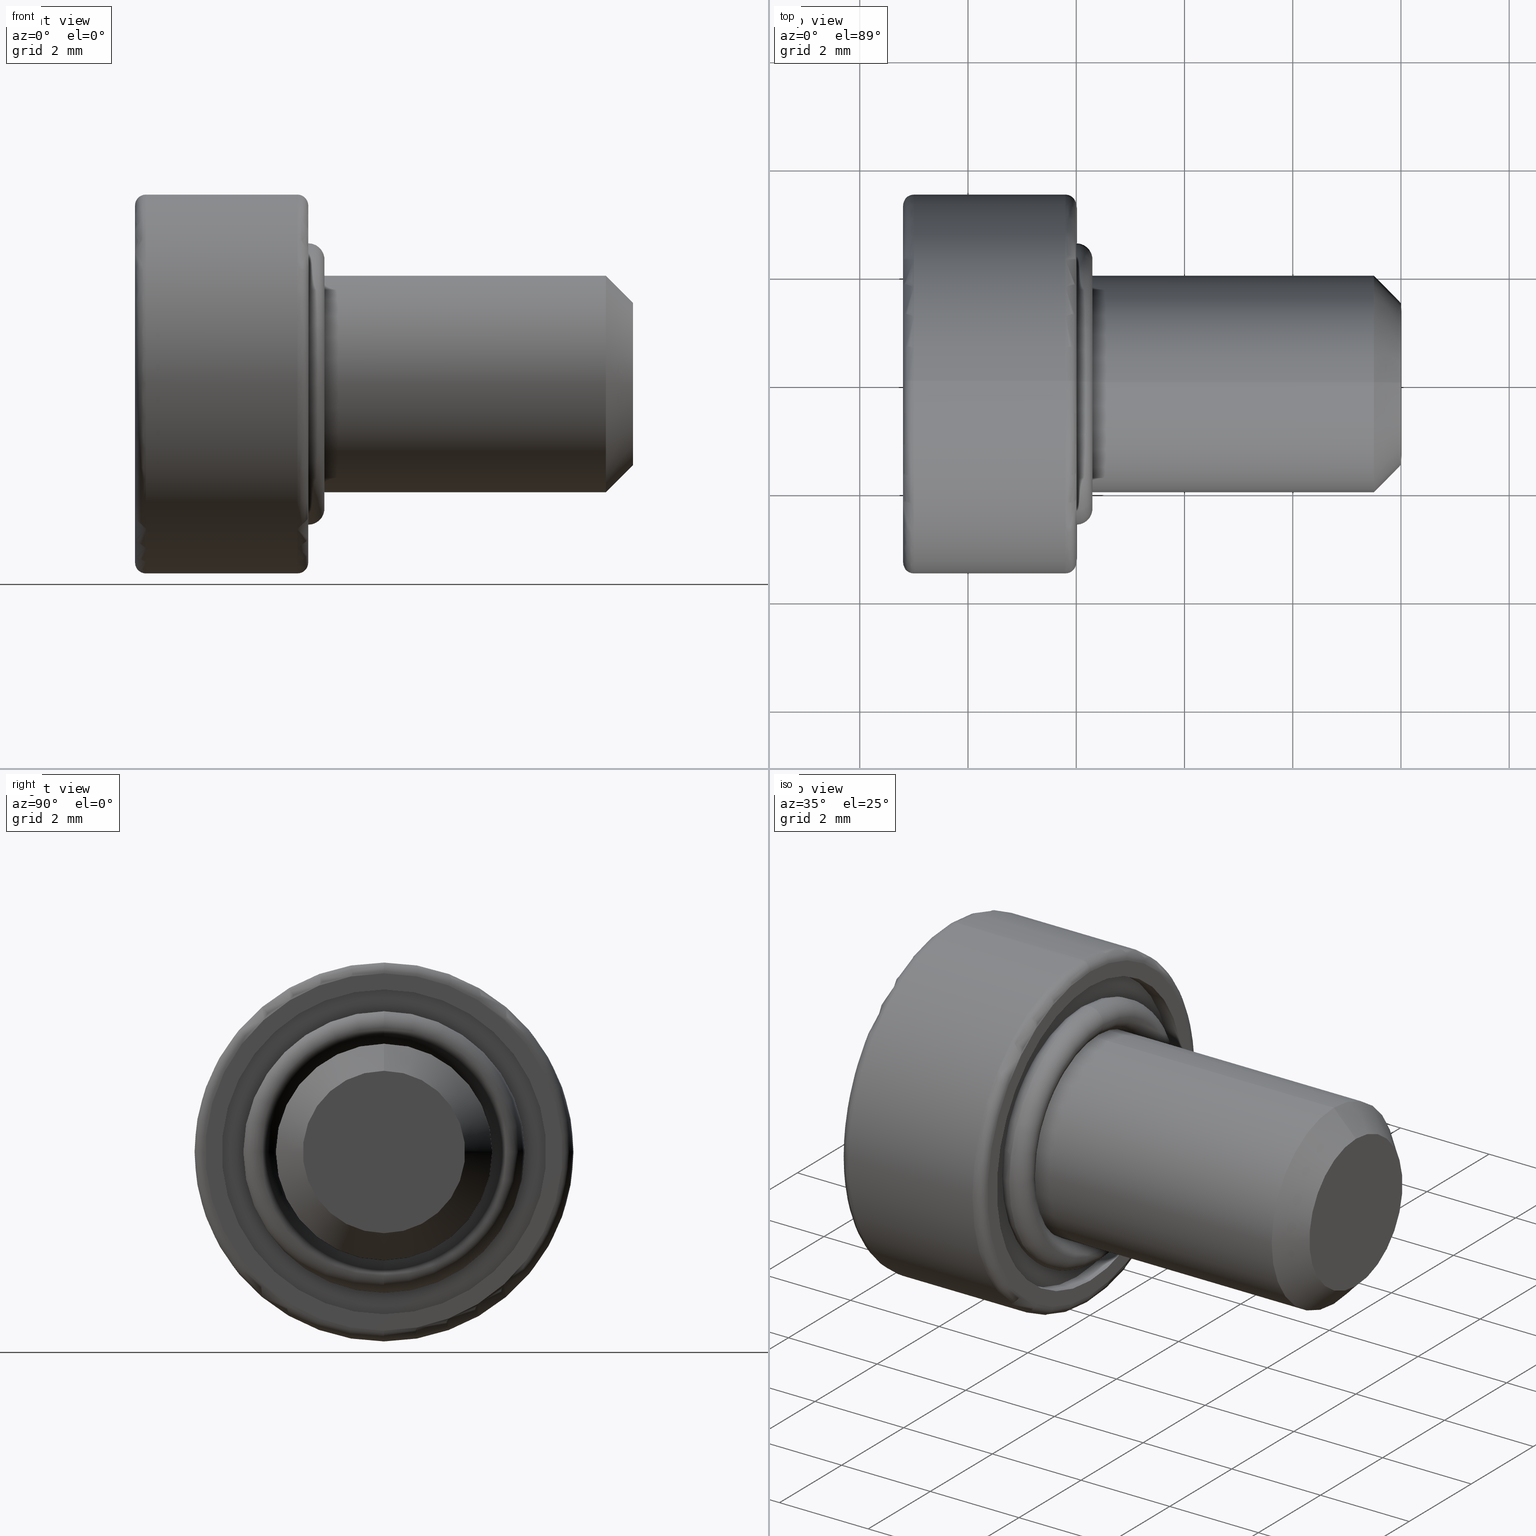
[diagram: canonical four-view strip — front | top / right | iso, engineering-drawing reading convention]
A machine part, canonical four-view strip (front | top / right | iso — engineering-drawing reading convention). The complete STEP part file that produces these views, byte-faithful:
ISO-10303-21;
HEADER;
FILE_DESCRIPTION (( 'STEP AP214' ),
    '1' );
FILE_NAME ('TL_418_M4_6.STEP',
    '2016-01-25T00:03:54',
    ( '' ),
    ( '' ),
    'SwSTEP 2.0',
    'SolidWorks 2015',
    '' );
FILE_SCHEMA (( 'AUTOMOTIVE_DESIGN' ));
ENDSEC;

DATA;
#1 = ADVANCED_FACE ( 'NONE', ( #25 ), #760, .F. ) ;
#2 = CARTESIAN_POINT ( 'NONE',  ( -1.900000000000000100, 1.443375672974112700, -2.388904732184694800E-014 ) ) ;
#3 = CARTESIAN_POINT ( 'NONE',  ( -1.900000000000000100, -0.7216878364870084100, 1.250000000000021800 ) ) ;
#4 = CARTESIAN_POINT ( 'NONE',  ( -3.673940397442057600E-017, 2.449293598294706900E-016, 2.000000000000000400 ) ) ;
#5 = DIRECTION ( 'NONE',  ( -0.0000000000000000000, 0.4999999999999809600, -0.8660254037844495900 ) ) ;
#6 = LINE ( 'NONE', #696, #192 ) ;
#7 = CIRCLE ( 'NONE', #379, 3.000000000000000400 ) ;
#8 = CIRCLE ( 'NONE', #275, 2.000000000000000000 ) ;
#9 = DIRECTION ( 'NONE',  ( 1.000000000000000000, 0.0000000000000000000, 0.0000000000000000000 ) ) ;
#10 = PRESENTATION_LAYER_ASSIGNMENT (  '', '', ( #788 ) ) ;
#11 = DIRECTION ( 'NONE',  ( -1.000000000000000000, -0.0000000000000000000, -0.0000000000000000000 ) ) ;
#12 = ORIENTED_EDGE ( 'NONE', *, *, #368, .T. ) ;
#13 = EDGE_LOOP ( 'NONE', ( #148, #648, #601, #81 ) ) ;
#14 = PRODUCT_DEFINITION_SHAPE ( 'NONE', 'NONE',  #805 ) ;
#15 = DIRECTION ( 'NONE',  ( 0.0000000000000000000, 0.0000000000000000000, -1.000000000000000000 ) ) ;
#16 = VECTOR ( 'NONE', #797, 1000.000000000000200 ) ;
#17 = DIRECTION ( 'NONE',  ( 1.000000000000000000, 0.0000000000000000000, 0.0000000000000000000 ) ) ;
#18 = SHAPE_REPRESENTATION_RELATIONSHIP ( 'NONE' , 'NONE' ,  #322, #187 ) ;
#19 = CARTESIAN_POINT ( 'NONE',  ( 6.000000000000000000, 0.0000000000000000000, 0.0000000000000000000 ) ) ;
#20 = CARTESIAN_POINT ( 'NONE',  ( -3.000000000000000000, 0.0000000000000000000, 0.0000000000000000000 ) ) ;
#21 = STYLED_ITEM ( 'NONE', ( #253 ), #103 ) ;
#22 = ORIENTED_EDGE ( 'NONE', *, *, #39, .F. ) ;
#23 = CARTESIAN_POINT ( 'NONE',  ( -3.200000000000000200, 0.7216878364870906700, 1.250000000000021800 ) ) ;
#24 = CARTESIAN_POINT ( 'NONE',  ( -1.900000000000000100, 0.7216878364870906700, 1.250000000000021800 ) ) ;
#25 = FACE_OUTER_BOUND ( 'NONE', #510, .T. ) ;
#26 = DIRECTION ( 'NONE',  ( 0.0000000000000000000, 0.0000000000000000000, 1.000000000000000000 ) ) ;
#27 = PLANE ( 'NONE',  #680 ) ;
#28 = VECTOR ( 'NONE', #260, 1000.000000000000000 ) ;
#29 = DIRECTION ( 'NONE',  ( 0.0000000000000000000, 0.0000000000000000000, 1.000000000000000000 ) ) ;
#30 = APPLICATION_CONTEXT ( 'automotive_design' ) ;
#31 = AXIS2_PLACEMENT_3D ( 'NONE', #650, #205, #576 ) ;
#32 = ORIENTED_EDGE ( 'NONE', *, *, #612, .F. ) ;
#33 = VERTEX_POINT ( 'NONE', #428 ) ;
#34 = CARTESIAN_POINT ( 'NONE',  ( -3.200000000000000200, -0.7216878364870908900, -1.250000000000022200 ) ) ;
#35 = ORIENTED_EDGE ( 'NONE', *, *, #641, .T. ) ;
#36 = ORIENTED_EDGE ( 'NONE', *, *, #544, .F. ) ;
#37 = EDGE_CURVE ( 'NONE', #389, #63, #459, .T. ) ;
#38 = CARTESIAN_POINT ( 'NONE',  ( 6.000000000000000000, 0.0000000000000000000, 1.499999999999999600 ) ) ;
#39 = EDGE_CURVE ( 'NONE', #476, #406, #628, .T. ) ;
#40 = AXIS2_PLACEMENT_3D ( 'NONE', #560, #753, #59 ) ;
#41 = FACE_OUTER_BOUND ( 'NONE', #427, .T. ) ;
#42 = VECTOR ( 'NONE', #542, 1000.000000000000000 ) ;
#43 = DIRECTION ( 'NONE',  ( 0.0000000000000000000, 0.0000000000000000000, -1.000000000000000000 ) ) ;
#44 = VERTEX_POINT ( 'NONE', #613 ) ;
#45 = ORIENTED_EDGE ( 'NONE', *, *, #634, .F. ) ;
#46 = UNCERTAINTY_MEASURE_WITH_UNIT (LENGTH_MEASURE( 1.000000000000000100E-005 ), #652, 'distance_accuracy_value', 'NONE');
#47 = CARTESIAN_POINT ( 'NONE',  ( -3.200000000000000200, -0.7216878364870911200, -1.250000000000022200 ) ) ;
#48 = CARTESIAN_POINT ( 'NONE',  ( -1.900000000000000100, 0.7216878364870081800, -1.250000000000022200 ) ) ;
#49 = CARTESIAN_POINT ( 'NONE',  ( -1.900000000000000100, 0.7216878364870081800, -1.250000000000022200 ) ) ;
#50 = MECHANICAL_DESIGN_GEOMETRIC_PRESENTATION_REPRESENTATION (  '', ( #788 ), #87 ) ;
#51 = ORIENTED_EDGE ( 'NONE', *, *, #37, .F. ) ;
#52 = DIRECTION ( 'NONE',  ( 0.0000000000000000000, 1.224646799147353200E-016, 1.000000000000000000 ) ) ;
#53 = CARTESIAN_POINT ( 'NONE',  ( 0.0000000000000000000, 2.816687638038912500E-016, 2.300000000000000300 ) ) ;
#54 = CIRCLE ( 'NONE', #405, 3.000000000000000400 ) ;
#55 =( NAMED_UNIT ( * ) PLANE_ANGLE_UNIT ( ) SI_UNIT ( $, .RADIAN. ) );
#56 = ADVANCED_FACE ( 'NONE', ( #606 ), #673, .T. ) ;
#57 = VERTEX_POINT ( 'NONE', #112 ) ;
#58 = AXIS2_PLACEMENT_3D ( 'NONE', #49, #674, #233 ) ;
#59 = DIRECTION ( 'NONE',  ( 0.0000000000000000000, 0.0000000000000000000, -1.000000000000000000 ) ) ;
#60 = ADVANCED_FACE ( 'NONE', ( #751 ), #804, .F. ) ;
#61 = FACE_OUTER_BOUND ( 'NONE', #740, .T. ) ;
#62 = ADVANCED_FACE ( 'NONE', ( #271 ), #418, .T. ) ;
#63 = VERTEX_POINT ( 'NONE', #47 ) ;
#64 = PRODUCT_DEFINITION ( 'UNKNOWN', '', #113, #119 ) ;
#65 = CARTESIAN_POINT ( 'NONE',  ( -1.900000000000000100, -0.7216878364870084100, 1.250000000000021800 ) ) ;
#66 = CARTESIAN_POINT ( 'NONE',  ( 6.000000000000000000, 0.0000000000000000000, 0.0000000000000000000 ) ) ;
#67 =( LENGTH_UNIT ( ) NAMED_UNIT ( * ) SI_UNIT ( .MILLI., .METRE. ) );
#68 = AXIS2_PLACEMENT_3D ( 'NONE', #646, #201, #573 ) ;
#69 = DIRECTION ( 'NONE',  ( 0.0000000000000000000, 0.0000000000000000000, -1.000000000000000000 ) ) ;
#70 = VECTOR ( 'NONE', #516, 1000.000000000000100 ) ;
#71 = DIRECTION ( 'NONE',  ( -0.0000000000000000000, -0.5000000000000380800, -0.8660254037844166100 ) ) ;
#72 = EDGE_CURVE ( 'NONE', #284, #498, #434, .T. ) ;
#73 = MECHANICAL_DESIGN_GEOMETRIC_PRESENTATION_REPRESENTATION (  '', ( #815 ), #137 ) ;
#74 = CARTESIAN_POINT ( 'NONE',  ( 0.0000000000000000000, 0.0000000000000000000, 0.0000000000000000000 ) ) ;
#75 = ORIENTED_EDGE ( 'NONE', *, *, #169, .F. ) ;
#76 = CARTESIAN_POINT ( 'NONE',  ( 0.0000000000000000000, 0.0000000000000000000, -2.300000000000000300 ) ) ;
#77 = ORIENTED_EDGE ( 'NONE', *, *, #286, .F. ) ;
#78 = DIRECTION ( 'NONE',  ( 1.000000000000000000, -0.0000000000000000000, -0.0000000000000000000 ) ) ;
#79 = ORIENTED_EDGE ( 'NONE', *, *, #657, .T. ) ;
#80 = CARTESIAN_POINT ( 'NONE',  ( -0.2000000000000000900, 0.0000000000000000000, -3.500000000000000400 ) ) ;
#81 = ORIENTED_EDGE ( 'NONE', *, *, #367, .F. ) ;
#82 = LINE ( 'NONE', #565, #232 ) ;
#83 = DIRECTION ( 'NONE',  ( 0.0000000000000000000, 0.0000000000000000000, -1.000000000000000000 ) ) ;
#84 = DIRECTION ( 'NONE',  ( 1.000000000000000000, 0.0000000000000000000, 0.0000000000000000000 ) ) ;
#85 = DIRECTION ( 'NONE',  ( 1.000000000000000000, 0.0000000000000000000, 0.0000000000000000000 ) ) ;
#86 = CARTESIAN_POINT ( 'NONE',  ( -1.900000000000000100, -1.443375672974113400, 2.362564658902374300E-014 ) ) ;
#87 =( GEOMETRIC_REPRESENTATION_CONTEXT ( 3 ) GLOBAL_UNCERTAINTY_ASSIGNED_CONTEXT ( ( #46 ) ) GLOBAL_UNIT_ASSIGNED_CONTEXT ( ( #652, #338, #785 ) ) REPRESENTATION_CONTEXT ( 'NONE', 'WORKASPACE' ) );
#88 = DIRECTION ( 'NONE',  ( 1.000000000000000000, 0.0000000000000000000, 0.0000000000000000000 ) ) ;
#89 = DIRECTION ( 'NONE',  ( 0.0000000000000000000, 0.0000000000000000000, -1.000000000000000000 ) ) ;
#90 = TOROIDAL_SURFACE ( 'NONE', #166, 2.300000000000000300, 0.2999999999999998800 ) ;
#91 = CLOSED_SHELL ( 'NONE', ( #56, #436, #504, #185 ) ) ;
#92 = VERTEX_POINT ( 'NONE', #3 ) ;
#93 = VERTEX_POINT ( 'NONE', #632 ) ;
#94 = DIRECTION ( 'NONE',  ( 1.000000000000000000, 0.0000000000000000000, 0.0000000000000000000 ) ) ;
#95 = ORIENTED_EDGE ( 'NONE', *, *, #410, .F. ) ;
#96 = ORIENTED_EDGE ( 'NONE', *, *, #811, .T. ) ;
#97 = ORIENTED_EDGE ( 'NONE', *, *, #255, .F. ) ;
#98 = DIRECTION ( 'NONE',  ( 1.000000000000000000, 0.0000000000000000000, 0.0000000000000000000 ) ) ;
#99 = VERTEX_POINT ( 'NONE', #812 ) ;
#100 = ORIENTED_EDGE ( 'NONE', *, *, #657, .F. ) ;
#101 = CARTESIAN_POINT ( 'NONE',  ( -0.2999999999999999900, 0.0000000000000000000, 0.0000000000000000000 ) ) ;
#102 = EDGE_LOOP ( 'NONE', ( #75, #283, #813, #689 ) ) ;
#103 = MANIFOLD_SOLID_BREP ( '��]1', #91 ) ;
#104 = VECTOR ( 'NONE', #396, 1000.000000000000000 ) ;
#105 = FACE_OUTER_BOUND ( 'NONE', #727, .T. ) ;
#106 = AXIS2_PLACEMENT_3D ( 'NONE', #639, #801, #355 ) ;
#107 = DIRECTION ( 'NONE',  ( 0.0000000000000000000, 0.0000000000000000000, -1.000000000000000000 ) ) ;
#108 = ORIENTED_EDGE ( 'NONE', *, *, #719, .T. ) ;
#109 = ORIENTED_EDGE ( 'NONE', *, *, #410, .T. ) ;
#110 = DIRECTION ( 'NONE',  ( 1.000000000000000000, 0.0000000000000000000, 0.0000000000000000000 ) ) ;
#111 = AXIS2_PLACEMENT_3D ( 'NONE', #256, #323, #512 ) ;
#112 = CARTESIAN_POINT ( 'NONE',  ( -0.2999999999999999900, 3.673940397442060400E-016, 3.000000000000000400 ) ) ;
#113 = PRODUCT_DEFINITION_FORMATION_WITH_SPECIFIED_SOURCE ( 'ANY', '', #735, .NOT_KNOWN. ) ;
#114 = DIRECTION ( 'NONE',  ( 0.0000000000000000000, -0.4999999999999809600, 0.8660254037844495900 ) ) ;
#115 = VECTOR ( 'NONE', #333, 1000.000000000000200 ) ;
#116 = AXIS2_PLACEMENT_3D ( 'NONE', #20, #653, #149 ) ;
#117 = DIRECTION ( 'NONE',  ( -1.000000000000000000, -0.0000000000000000000, -0.0000000000000000000 ) ) ;
#118 = COLOUR_RGB ( '',0.7921568627450980000, 0.8196078431372548800, 0.9333333333333333500 ) ;
#119 = PRODUCT_DEFINITION_CONTEXT ( 'detailed design', #30, 'design' ) ;
#120 = ORIENTED_EDGE ( 'NONE', *, *, #368, .F. ) ;
#121 = DIRECTION ( 'NONE',  ( -1.000000000000000000, -0.0000000000000000000, -0.0000000000000000000 ) ) ;
#122 = EDGE_CURVE ( 'NONE', #92, #476, #527, .T. ) ;
#123 = ORIENTED_EDGE ( 'NONE', *, *, #471, .F. ) ;
#124 = ORIENTED_EDGE ( 'NONE', *, *, #581, .F. ) ;
#125 = VERTEX_POINT ( 'NONE', #412 ) ;
#126 = ORIENTED_EDGE ( 'NONE', *, *, #242, .T. ) ;
#127 = DIRECTION ( 'NONE',  ( 0.0000000000000000000, 0.0000000000000000000, -1.000000000000000000 ) ) ;
#128 = ORIENTED_EDGE ( 'NONE', *, *, #122, .F. ) ;
#129 = ORIENTED_EDGE ( 'NONE', *, *, #173, .T. ) ;
#130 = ADVANCED_FACE ( 'NONE', ( #693 ), #507, .T. ) ;
#131 = VECTOR ( 'NONE', #277, 1000.000000000000000 ) ;
#132 = COLOUR_RGB ( '',0.7921568627450980000, 0.8196078431372548800, 0.9333333333333333500 ) ;
#133 = CARTESIAN_POINT ( 'NONE',  ( -3.200000000000000200, 4.163799117101001500E-016, 3.300000000000000300 ) ) ;
#134 = DIRECTION ( 'NONE',  ( 0.0000000000000000000, 1.000000000000000000, -1.224646799147353200E-016 ) ) ;
#135 = ADVANCED_FACE ( 'NONE', ( #105 ), #658, .T. ) ;
#136 = CARTESIAN_POINT ( 'NONE',  ( -3.200000000000000200, -0.7216878364870084100, 1.250000000000021800 ) ) ;
#137 =( GEOMETRIC_REPRESENTATION_CONTEXT ( 3 ) GLOBAL_UNCERTAINTY_ASSIGNED_CONTEXT ( ( #484 ) ) GLOBAL_UNIT_ASSIGNED_CONTEXT ( ( #555, #511, #567 ) ) REPRESENTATION_CONTEXT ( 'NONE', 'WORKASPACE' ) );
#138 = DIRECTION ( 'NONE',  ( 0.0000000000000000000, 1.000000000000000000, -1.224646799147353200E-016 ) ) ;
#139 = DIRECTION ( 'NONE',  ( 0.0000000000000000000, 0.0000000000000000000, -1.000000000000000000 ) ) ;
#140 = COLOUR_RGB ( '',0.7921568627450980000, 0.8196078431372548800, 0.9333333333333333500 ) ;
#141 = LINE ( 'NONE', #207, #468 ) ;
#142 = CARTESIAN_POINT ( 'NONE',  ( -1.900000000000000100, -1.443375672974113400, 2.362564658902374300E-014 ) ) ;
#143 = FILL_AREA_STYLE_COLOUR ( '', #118 ) ;
#144 = SHAPE_DEFINITION_REPRESENTATION ( #473, #295 ) ;
#145 = DIRECTION ( 'NONE',  ( 0.0000000000000000000, 0.0000000000000000000, -1.000000000000000000 ) ) ;
#146 = CARTESIAN_POINT ( 'NONE',  ( -1.900000000000000100, 0.7216878364870081800, -1.250000000000022200 ) ) ;
#147 = ORIENTED_EDGE ( 'NONE', *, *, #456, .T. ) ;
#148 = ORIENTED_EDGE ( 'NONE', *, *, #528, .F. ) ;
#149 = DIRECTION ( 'NONE',  ( 0.0000000000000000000, 0.0000000000000000000, -1.000000000000000000 ) ) ;
#150 = ORIENTED_EDGE ( 'NONE', *, *, #759, .F. ) ;
#151 = DIRECTION ( 'NONE',  ( 0.0000000000000000000, 0.0000000000000000000, -1.000000000000000000 ) ) ;
#152 = VECTOR ( 'NONE', #110, 1000.000000000000000 ) ;
#153 = DIRECTION ( 'NONE',  ( 0.0000000000000000000, 1.000000000000000000, -1.224646799147353200E-016 ) ) ;
#154 = CARTESIAN_POINT ( 'NONE',  ( -1.900000000000000100, -0.7216878364870908900, -1.250000000000022200 ) ) ;
#155 = AXIS2_PLACEMENT_3D ( 'NONE', #610, #297, #357 ) ;
#156 = DIRECTION ( 'NONE',  ( 0.0000000000000000000, 0.0000000000000000000, -1.000000000000000000 ) ) ;
#157 = AXIS2_PLACEMENT_3D ( 'NONE', #401, #17, #463 ) ;
#158 = CARTESIAN_POINT ( 'NONE',  ( -3.200000000000000200, 0.0000000000000000000, 0.0000000000000000000 ) ) ;
#159 = CARTESIAN_POINT ( 'NONE',  ( -0.2999999999999999900, 0.0000000000000000000, -3.000000000000000400 ) ) ;
#160 = PRODUCT_RELATED_PRODUCT_CATEGORY ( 'part', '', ( #735 ) ) ;
#161 = TOROIDAL_SURFACE ( 'NONE', #644, 2.300000000000000300, 0.2999999999999998800 ) ;
#162 = VECTOR ( 'NONE', #399, 1000.000000000000000 ) ;
#163 = CIRCLE ( 'NONE', #439, 3.500000000000000400 ) ;
#164 = DIRECTION ( 'NONE',  ( 0.0000000000000000000, 0.0000000000000000000, -1.000000000000000000 ) ) ;
#165 = APPLICATION_PROTOCOL_DEFINITION ( 'draft international standard', 'automotive_design', 1998, #214 ) ;
#166 = AXIS2_PLACEMENT_3D ( 'NONE', #74, #78, #15 ) ;
#167 = VERTEX_POINT ( 'NONE', #48 ) ;
#168 = DIRECTION ( 'NONE',  ( 0.0000000000000000000, 0.0000000000000000000, -1.000000000000000000 ) ) ;
#169 = EDGE_CURVE ( 'NONE', #33, #478, #342, .T. ) ;
#170 = CIRCLE ( 'NONE', #446, 0.2000000000000000900 ) ;
#171 = CARTESIAN_POINT ( 'NONE',  ( -3.200000000000000200, -0.7216878364870084100, 1.250000000000021800 ) ) ;
#172 = DIRECTION ( 'NONE',  ( 1.000000000000000000, 0.0000000000000000000, 0.0000000000000000000 ) ) ;
#173 = EDGE_CURVE ( 'NONE', #556, #362, #6, .T. ) ;
#174 = DIRECTION ( 'NONE',  ( -0.0000000000000000000, -1.000000000000000000, -0.0000000000000000000 ) ) ;
#175 = FACE_OUTER_BOUND ( 'NONE', #13, .T. ) ;
#176 = FACE_OUTER_BOUND ( 'NONE', #575, .T. ) ;
#177 = DIRECTION ( 'NONE',  ( 0.0000000000000000000, -0.8660254037844165000, 0.5000000000000385200 ) ) ;
#178 = ORIENTED_EDGE ( 'NONE', *, *, #595, .T. ) ;
#179 = ORIENTED_EDGE ( 'NONE', *, *, #413, .T. ) ;
#180 = CYLINDRICAL_SURFACE ( 'NONE', #509, 3.000000000000000400 ) ;
#181 = LINE ( 'NONE', #289, #499 ) ;
#182 = CARTESIAN_POINT ( 'NONE',  ( 6.000000000000000000, 0.0000000000000000000, 0.0000000000000000000 ) ) ;
#183 = ADVANCED_FACE ( 'NONE', ( #489 ), #817, .F. ) ;
#184 = DIRECTION ( 'NONE',  ( -1.000000000000000000, -0.0000000000000000000, -0.0000000000000000000 ) ) ;
#185 = ADVANCED_FACE ( 'NONE', ( #676 ), #161, .T. ) ;
#186 = DIRECTION ( 'NONE',  ( 1.000000000000000000, 0.0000000000000000000, 0.0000000000000000000 ) ) ;
#187 = ADVANCED_BREP_SHAPE_REPRESENTATION ( '', ( #103, #249, #695 ), #660 ) ;
#188 = CARTESIAN_POINT ( 'NONE',  ( 0.0000000000000000000, 2.816687638038912500E-016, 2.300000000000000300 ) ) ;
#189 = ORIENTED_EDGE ( 'NONE', *, *, #173, .F. ) ;
#190 = SURFACE_SIDE_STYLE ('',( #442 ) ) ;
#191 = AXIS2_PLACEMENT_3D ( 'NONE', #643, #633, #692 ) ;
#192 = VECTOR ( 'NONE', #117, 1000.000000000000000 ) ;
#193 = PRODUCT_DEFINITION_FORMATION_WITH_SPECIFIED_SOURCE ( 'ANY', '', #679, .NOT_KNOWN. ) ;
#194 = ORIENTED_EDGE ( 'NONE', *, *, #367, .T. ) ;
#195 = CARTESIAN_POINT ( 'NONE',  ( 5.499999999999998200, 0.0000000000000000000, 2.000000000000000000 ) ) ;
#196 = DIRECTION ( 'NONE',  ( -0.0000000000000000000, -0.4999999999999812400, 0.8660254037844493700 ) ) ;
#197 = EDGE_LOOP ( 'NONE', ( #411, #120, #774, #307 ) ) ;
#198 = AXIS2_PLACEMENT_3D ( 'NONE', #768, #325, #698 ) ;
#199 = CARTESIAN_POINT ( 'NONE',  ( 5.499999999999998200, 2.449293598294706900E-016, -2.000000000000000000 ) ) ;
#200 = CARTESIAN_POINT ( 'NONE',  ( -0.2999999999999999900, 0.0000000000000000000, 0.0000000000000000000 ) ) ;
#201 = DIRECTION ( 'NONE',  ( 0.0000000000000000000, -1.000000000000000000, 0.0000000000000000000 ) ) ;
#202 = VECTOR ( 'NONE', #258, 1000.000000000000000 ) ;
#203 = FACE_OUTER_BOUND ( 'NONE', #754, .T. ) ;
#204 = EDGE_CURVE ( 'NONE', #519, #44, #318, .T. ) ;
#205 = DIRECTION ( 'NONE',  ( -1.000000000000000000, -0.0000000000000000000, -0.0000000000000000000 ) ) ;
#206 = DIRECTION ( 'NONE',  ( -0.0000000000000000000, -0.5000000000000380800, -0.8660254037844166100 ) ) ;
#207 = CARTESIAN_POINT ( 'NONE',  ( -3.200000000000000200, 1.443375672974112700, -2.388904732184694800E-014 ) ) ;
#208 = VERTEX_POINT ( 'NONE', #136 ) ;
#209 = DIRECTION ( 'NONE',  ( 0.0000000000000000000, 0.0000000000000000000, -1.000000000000000000 ) ) ;
#210 = EDGE_CURVE ( 'NONE', #316, #99, #806, .T. ) ;
#211 = CARTESIAN_POINT ( 'NONE',  ( -0.2000000000000000900, 0.0000000000000000000, 0.0000000000000000000 ) ) ;
#212 =( NAMED_UNIT ( * ) SI_UNIT ( $, .STERADIAN. ) SOLID_ANGLE_UNIT ( ) );
#213 = AXIS2_PLACEMENT_3D ( 'NONE', #53, #138, #52 ) ;
#214 = APPLICATION_CONTEXT ( 'automotive_design' ) ;
#215 = ORIENTED_EDGE ( 'NONE', *, *, #682, .F. ) ;
#216 = ORIENTED_EDGE ( 'NONE', *, *, #634, .T. ) ;
#217 = AXIS2_PLACEMENT_3D ( 'NONE', #687, #26, #84 ) ;
#218 = ORIENTED_EDGE ( 'NONE', *, *, #716, .T. ) ;
#219 = APPLICATION_CONTEXT ( 'automotive_design' ) ;
#220 = DIRECTION ( 'NONE',  ( -0.0000000000000000000, -1.000000000000000000, -0.0000000000000000000 ) ) ;
#221 = PRODUCT_DEFINITION_CONTEXT ( 'detailed design', #219, 'design' ) ;
#222 = CIRCLE ( 'NONE', #299, 2.000000000000000000 ) ;
#223 = TOROIDAL_SURFACE ( 'NONE', #281, 3.300000000000000300, 0.2000000000000000100 ) ;
#224 = DIRECTION ( 'NONE',  ( 0.0000000000000000000, 0.0000000000000000000, -1.000000000000000000 ) ) ;
#225 = EDGE_LOOP ( 'NONE', ( #35, #22, #128, #416 ) ) ;
#226 = VERTEX_POINT ( 'NONE', #2 ) ;
#227 = ORIENTED_EDGE ( 'NONE', *, *, #581, .T. ) ;
#228 = DIRECTION ( 'NONE',  ( 1.000000000000000000, 0.0000000000000000000, 0.0000000000000000000 ) ) ;
#229 = ORIENTED_EDGE ( 'NONE', *, *, #612, .T. ) ;
#230 = SURFACE_SIDE_STYLE ('',( #584 ) ) ;
#231 = DIRECTION ( 'NONE',  ( 1.000000000000000000, -0.0000000000000000000, -0.0000000000000000000 ) ) ;
#232 = VECTOR ( 'NONE', #5, 1000.000000000000000 ) ;
#233 = DIRECTION ( 'NONE',  ( 0.0000000000000000000, 0.5000000000000380800, 0.8660254037844167300 ) ) ;
#234 = AXIS2_PLACEMENT_3D ( 'NONE', #458, #267, #370 ) ;
#235 = PRODUCT_RELATED_PRODUCT_CATEGORY ( 'part', '', ( #679 ) ) ;
#236 = EDGE_LOOP ( 'NONE', ( #372, #621, #553, #280 ) ) ;
#237 = AXIS2_PLACEMENT_3D ( 'NONE', #672, #172, #609 ) ;
#238 = CARTESIAN_POINT ( 'NONE',  ( -0.2999999999999999900, 0.0000000000000000000, 0.0000000000000000000 ) ) ;
#239 = LINE ( 'NONE', #703, #70 ) ;
#240 = CLOSED_SHELL ( 'NONE', ( #500, #431, #62, #135, #315, #627, #244, #750, #371, #818, #251, #688, #631, #130, #554, #559, #183, #60, #1, #375, #310, #741, #690 ) ) ;
#241 = ORIENTED_EDGE ( 'NONE', *, *, #506, .F. ) ;
#242 = EDGE_CURVE ( 'NONE', #455, #125, #636, .T. ) ;
#243 = VERTEX_POINT ( 'NONE', #133 ) ;
#244 = ADVANCED_FACE ( 'NONE', ( #467 ), #615, .T. ) ;
#245 = CARTESIAN_POINT ( 'NONE',  ( 0.0000000000000000000, 0.0000000000000000000, 0.0000000000000000000 ) ) ;
#246 = VERTEX_POINT ( 'NONE', #557 ) ;
#247 = CARTESIAN_POINT ( 'NONE',  ( -0.2000000000000000900, 0.0000000000000000000, 0.0000000000000000000 ) ) ;
#248 = ORIENTED_EDGE ( 'NONE', *, *, #72, .T. ) ;
#249 = MANIFOLD_SOLID_BREP ( '��� - �����o��2', #240 ) ;
#250 = PLANE ( 'NONE',  #488 ) ;
#251 = ADVANCED_FACE ( 'NONE', ( #301, #790 ), #437, .T. ) ;
#252 = VECTOR ( 'NONE', #700, 1000.000000000000000 ) ;
#253 = PRESENTATION_STYLE_ASSIGNMENT (( #608 ) ) ;
#254 = CARTESIAN_POINT ( 'NONE',  ( 0.0000000000000000000, 0.0000000000000000000, 0.0000000000000000000 ) ) ;
#255 = EDGE_CURVE ( 'NONE', #389, #556, #385, .T. ) ;
#256 = CARTESIAN_POINT ( 'NONE',  ( 6.000000000000000000, 0.0000000000000000000, 0.0000000000000000000 ) ) ;
#257 = AXIS2_PLACEMENT_3D ( 'NONE', #308, #9, #127 ) ;
#258 = DIRECTION ( 'NONE',  ( -1.000000000000000000, -0.0000000000000000000, -0.0000000000000000000 ) ) ;
#259 = EDGE_CURVE ( 'NONE', #284, #44, #550, .T. ) ;
#260 = DIRECTION ( 'NONE',  ( -0.7071067811865487900, 8.659560562354918100E-017, -0.7071067811865463500 ) ) ;
#261 = CARTESIAN_POINT ( 'NONE',  ( 5.499999999999998200, 0.0000000000000000000, 0.0000000000000000000 ) ) ;
#262 = CIRCLE ( 'NONE', #68, 0.2000000000000000900 ) ;
#263 = CARTESIAN_POINT ( 'NONE',  ( -1.900000000000000100, 0.7216878364870906700, 1.250000000000021800 ) ) ;
#264 = ORIENTED_EDGE ( 'NONE', *, *, #210, .F. ) ;
#265 = DIRECTION ( 'NONE',  ( 0.0000000000000000000, 0.0000000000000000000, -1.000000000000000000 ) ) ;
#266 = EDGE_LOOP ( 'NONE', ( #309, #426 ) ) ;
#267 = DIRECTION ( 'NONE',  ( 1.000000000000000000, 0.0000000000000000000, 0.0000000000000000000 ) ) ;
#268 = VERTEX_POINT ( 'NONE', #438 ) ;
#269 = ORIENTED_EDGE ( 'NONE', *, *, #376, .F. ) ;
#270 = LINE ( 'NONE', #574, #252 ) ;
#271 = FACE_OUTER_BOUND ( 'NONE', #483, .T. ) ;
#272 = CARTESIAN_POINT ( 'NONE',  ( -1.900000000000000100, -0.7216878364870084100, 1.250000000000021800 ) ) ;
#273 = APPLICATION_PROTOCOL_DEFINITION ( 'draft international standard', 'automotive_design', 1998, #219 ) ;
#274 = DIRECTION ( 'NONE',  ( -0.0000000000000000000, 0.0000000000000000000, 1.000000000000000000 ) ) ;
#275 = AXIS2_PLACEMENT_3D ( 'NONE', #261, #570, #265 ) ;
#276 = APPLICATION_CONTEXT ( 'automotive_design' ) ;
#277 = DIRECTION ( 'NONE',  ( -0.0000000000000000000, -1.000000000000000000, -0.0000000000000000000 ) ) ;
#278 = PRESENTATION_STYLE_ASSIGNMENT (( #757 ) ) ;
#279 = LINE ( 'NONE', #272, #115 ) ;
#280 = ORIENTED_EDGE ( 'NONE', *, *, #259, .T. ) ;
#281 = AXIS2_PLACEMENT_3D ( 'NONE', #475, #642, #344 ) ;
#282 = EDGE_LOOP ( 'NONE', ( #326, #45, #194, #415 ) ) ;
#283 = ORIENTED_EDGE ( 'NONE', *, *, #678, .F. ) ;
#284 = VERTEX_POINT ( 'NONE', #4 ) ;
#285 = DIRECTION ( 'NONE',  ( -1.000000000000000000, -0.0000000000000000000, -0.0000000000000000000 ) ) ;
#286 = EDGE_CURVE ( 'NONE', #92, #208, #701, .T. ) ;
#287 = ORIENTED_EDGE ( 'NONE', *, *, #814, .F. ) ;
#288 = ORIENTED_EDGE ( 'NONE', *, *, #712, .F. ) ;
#289 = CARTESIAN_POINT ( 'NONE',  ( 6.000000000000000000, 2.449293598294706400E-016, -2.000000000000000000 ) ) ;
#290 = ORIENTED_EDGE ( 'NONE', *, *, #767, .F. ) ;
#291 = LINE ( 'NONE', #403, #131 ) ;
#292 = VECTOR ( 'NONE', #733, 1000.000000000000000 ) ;
#293 = ITEM_DEFINED_TRANSFORMATION ( 'NONE', 'NONE', #675,  #695 ) ;
#294 = DIRECTION ( 'NONE',  ( 0.0000000000000000000, 0.0000000000000000000, -1.000000000000000000 ) ) ;
#295 = SHAPE_REPRESENTATION ( 'TL_418_M4_6', ( #756, #675 ), #711 ) ;
#296 = CARTESIAN_POINT ( 'NONE',  ( 6.000000000000000000, 0.0000000000000000000, 0.0000000000000000000 ) ) ;
#297 = DIRECTION ( 'NONE',  ( -1.000000000000000000, -0.0000000000000000000, -0.0000000000000000000 ) ) ;
#298 = EDGE_CURVE ( 'NONE', #125, #455, #222, .T. ) ;
#299 = AXIS2_PLACEMENT_3D ( 'NONE', #764, #364, #738 ) ;
#300 = DIRECTION ( 'NONE',  ( -1.000000000000000000, -0.0000000000000000000, -0.0000000000000000000 ) ) ;
#301 = FACE_OUTER_BOUND ( 'NONE', #448, .T. ) ;
#302 = CIRCLE ( 'NONE', #31, 3.300000000000000300 ) ;
#303 = EDGE_CURVE ( 'NONE', #167, #93, #365, .T. ) ;
#304 = CIRCLE ( 'NONE', #614, 3.300000000000000300 ) ;
#305 = PRESENTATION_LAYER_ASSIGNMENT (  '', '', ( #21 ) ) ;
#306 = CARTESIAN_POINT ( 'NONE',  ( -1.900000000000000100, -0.7216878364870084100, 1.250000000000021800 ) ) ;
#307 = ORIENTED_EDGE ( 'NONE', *, *, #501, .F. ) ;
#308 = CARTESIAN_POINT ( 'NONE',  ( -0.2999999999999999900, 0.0000000000000000000, 0.0000000000000000000 ) ) ;
#309 = ORIENTED_EDGE ( 'NONE', *, *, #814, .T. ) ;
#310 = ADVANCED_FACE ( 'NONE', ( #41 ), #312, .F. ) ;
#311 = ORIENTED_EDGE ( 'NONE', *, *, #811, .F. ) ;
#312 = PLANE ( 'NONE',  #421 ) ;
#313 = ORIENTED_EDGE ( 'NONE', *, *, #769, .F. ) ;
#314 = CIRCLE ( 'NONE', #572, 0.2000000000000000900 ) ;
#315 = ADVANCED_FACE ( 'NONE', ( #175 ), #180, .F. ) ;
#316 = VERTEX_POINT ( 'NONE', #409 ) ;
#317 = PLANE ( 'NONE',  #111 ) ;
#318 = CIRCLE ( 'NONE', #549, 2.600000000000000500 ) ;
#319 = LINE ( 'NONE', #159, #162 ) ;
#320 = FACE_OUTER_BOUND ( 'NONE', #266, .T. ) ;
#321 = CARTESIAN_POINT ( 'NONE',  ( -1.900000000000000100, -0.7216878364870908900, -1.250000000000022200 ) ) ;
#322 = SHAPE_REPRESENTATION ( 'screw', ( #695 ), #660 ) ;
#323 = DIRECTION ( 'NONE',  ( 1.000000000000000000, 0.0000000000000000000, 0.0000000000000000000 ) ) ;
#324 = AXIS2_PLACEMENT_3D ( 'NONE', #604, #354, #294 ) ;
#325 = DIRECTION ( 'NONE',  ( -1.000000000000000000, 0.0000000000000000000, 0.0000000000000000000 ) ) ;
#326 = ORIENTED_EDGE ( 'NONE', *, *, #382, .F. ) ;
#327 = ORIENTED_EDGE ( 'NONE', *, *, #547, .F. ) ;
#328 = DIRECTION ( 'NONE',  ( 1.000000000000000000, -0.0000000000000000000, -0.0000000000000000000 ) ) ;
#329 = EDGE_CURVE ( 'NONE', #44, #519, #351, .T. ) ;
#330 = DIRECTION ( 'NONE',  ( -1.000000000000000000, 0.0000000000000000000, 0.0000000000000000000 ) ) ;
#331 = TOROIDAL_SURFACE ( 'NONE', #495, 3.300000000000000300, 0.2000000000000000100 ) ;
#332 = DIRECTION ( 'NONE',  ( 0.0000000000000000000, 0.0000000000000000000, -1.000000000000000000 ) ) ;
#333 = DIRECTION ( 'NONE',  ( -0.0000000000000000000, 0.5000000000000384100, 0.8660254037844165000 ) ) ;
#334 = EDGE_LOOP ( 'NONE', ( #622, #561 ) ) ;
#335 = DIRECTION ( 'NONE',  ( 0.0000000000000000000, 0.0000000000000000000, 1.000000000000000000 ) ) ;
#336 = UNCERTAINTY_MEASURE_WITH_UNIT (LENGTH_MEASURE( 1.000000000000000100E-005 ), #67, 'distance_accuracy_value', 'NONE');
#337 = DIRECTION ( 'NONE',  ( 1.000000000000000000, 0.0000000000000000000, 0.0000000000000000000 ) ) ;
#338 =( NAMED_UNIT ( * ) PLANE_ANGLE_UNIT ( ) SI_UNIT ( $, .RADIAN. ) );
#339 = EDGE_CURVE ( 'NONE', #93, #63, #517, .T. ) ;
#340 = CARTESIAN_POINT ( 'NONE',  ( 0.0000000000000000000, 0.0000000000000000000, 0.0000000000000000000 ) ) ;
#341 = SURFACE_STYLE_USAGE ( .BOTH. , #789 ) ;
#342 = LINE ( 'NONE', #493, #28 ) ;
#343 = VECTOR ( 'NONE', #220, 1000.000000000000000 ) ;
#344 = DIRECTION ( 'NONE',  ( 0.0000000000000000000, 0.0000000000000000000, -1.000000000000000000 ) ) ;
#345 = EDGE_CURVE ( 'NONE', #599, #685, #7, .T. ) ;
#346 = DIRECTION ( 'NONE',  ( 0.0000000000000000000, -1.000000000000000000, 0.0000000000000000000 ) ) ;
#347 = MECHANICAL_DESIGN_GEOMETRIC_PRESENTATION_REPRESENTATION (  '', ( #21 ), #384 ) ;
#348 = EDGE_LOOP ( 'NONE', ( #541, #734, #311, #269, #349, #36 ) ) ;
#349 = ORIENTED_EDGE ( 'NONE', *, *, #641, .F. ) ;
#350 = ORIENTED_EDGE ( 'NONE', *, *, #683, .T. ) ;
#351 = CIRCLE ( 'NONE', #466, 2.600000000000000500 ) ;
#352 = VECTOR ( 'NONE', #481, 1000.000000000000000 ) ;
#353 = CARTESIAN_POINT ( 'NONE',  ( -1.900000000000000100, -1.443375672974113400, 2.362564658902374300E-014 ) ) ;
#354 = DIRECTION ( 'NONE',  ( 1.000000000000000000, 0.0000000000000000000, 0.0000000000000000000 ) ) ;
#355 = DIRECTION ( 'NONE',  ( 0.0000000000000000000, 0.0000000000000000000, -1.000000000000000000 ) ) ;
#356 = ORIENTED_EDGE ( 'NONE', *, *, #339, .T. ) ;
#357 = DIRECTION ( 'NONE',  ( 0.0000000000000000000, 0.0000000000000000000, 1.000000000000000000 ) ) ;
#358 = VECTOR ( 'NONE', #486, 1000.000000000000000 ) ;
#359 = CARTESIAN_POINT ( 'NONE',  ( 0.0000000000000000000, 0.0000000000000000000, 0.0000000000000000000 ) ) ;
#360 = ORIENTED_EDGE ( 'NONE', *, *, #683, .F. ) ;
#361 = ORIENTED_EDGE ( 'NONE', *, *, #719, .F. ) ;
#362 = VERTEX_POINT ( 'NONE', #591 ) ;
#363 = AXIS2_PLACEMENT_3D ( 'NONE', #787, #231, #107 ) ;
#364 = DIRECTION ( 'NONE',  ( 1.000000000000000000, 0.0000000000000000000, 0.0000000000000000000 ) ) ;
#365 = LINE ( 'NONE', #496, #202 ) ;
#366 = LINE ( 'NONE', #38, #42 ) ;
#367 = EDGE_CURVE ( 'NONE', #744, #599, #319, .T. ) ;
#368 = EDGE_CURVE ( 'NONE', #394, #625, #490, .T. ) ;
#369 = FILL_AREA_STYLE_COLOUR ( '', #140 ) ;
#370 = DIRECTION ( 'NONE',  ( 0.0000000000000000000, 0.0000000000000000000, -1.000000000000000000 ) ) ;
#371 = ADVANCED_FACE ( 'NONE', ( #176, #807 ), #27, .T. ) ;
#372 = ORIENTED_EDGE ( 'NONE', *, *, #204, .F. ) ;
#373 = DIRECTION ( 'NONE',  ( 1.000000000000000000, 0.0000000000000000000, 0.0000000000000000000 ) ) ;
#374 = ORIENTED_EDGE ( 'NONE', *, *, #169, .T. ) ;
#375 = ADVANCED_FACE ( 'NONE', ( #637 ), #784, .F. ) ;
#376 = EDGE_CURVE ( 'NONE', #406, #246, #141, .T. ) ;
#377 = DIRECTION ( 'NONE',  ( 0.0000000000000000000, 0.0000000000000000000, -1.000000000000000000 ) ) ;
#378 = DIRECTION ( 'NONE',  ( 1.000000000000000000, 0.0000000000000000000, 0.0000000000000000000 ) ) ;
#379 = AXIS2_PLACEMENT_3D ( 'NONE', #529, #85, #465 ) ;
#380 = DIRECTION ( 'NONE',  ( 0.0000000000000000000, 0.0000000000000000000, -1.000000000000000000 ) ) ;
#381 = EDGE_LOOP ( 'NONE', ( #402, #453, #248, #178 ) ) ;
#382 = EDGE_CURVE ( 'NONE', #57, #685, #659, .T. ) ;
#383 = CARTESIAN_POINT ( 'NONE',  ( 0.0000000000000000000, 0.0000000000000000000, 0.0000000000000000000 ) ) ;
#384 =( GEOMETRIC_REPRESENTATION_CONTEXT ( 3 ) GLOBAL_UNCERTAINTY_ASSIGNED_CONTEXT ( ( #783 ) ) GLOBAL_UNIT_ASSIGNED_CONTEXT ( ( #540, #799, #726 ) ) REPRESENTATION_CONTEXT ( 'NONE', 'WORKASPACE' ) );
#385 = LINE ( 'NONE', #142, #717 ) ;
#386 = FACE_OUTER_BOUND ( 'NONE', #236, .T. ) ;
#387 = PRODUCT_CONTEXT ( 'NONE', #276, 'mechanical' ) ;
#388 = PRESENTATION_STYLE_ASSIGNMENT (( #341 ) ) ;
#389 = VERTEX_POINT ( 'NONE', #154 ) ;
#390 = ORIENTED_EDGE ( 'NONE', *, *, #544, .T. ) ;
#391 = PLANE ( 'NONE',  #400 ) ;
#392 = EDGE_LOOP ( 'NONE', ( #124, #444, #522, #12 ) ) ;
#393 = DIRECTION ( 'NONE',  ( 1.000000000000000000, 0.0000000000000000000, 0.0000000000000000000 ) ) ;
#394 = VERTEX_POINT ( 'NONE', #80 ) ;
#395 = ORIENTED_EDGE ( 'NONE', *, *, #303, .T. ) ;
#396 = DIRECTION ( 'NONE',  ( -0.0000000000000000000, 1.000000000000000000, -0.0000000000000000000 ) ) ;
#397 = CIRCLE ( 'NONE', #157, 3.000000000000000400 ) ;
#398 = ORIENTED_EDGE ( 'NONE', *, *, #210, .T. ) ;
#399 = DIRECTION ( 'NONE',  ( 1.000000000000000000, -0.0000000000000000000, -0.0000000000000000000 ) ) ;
#400 = AXIS2_PLACEMENT_3D ( 'NONE', #86, #445, #765 ) ;
#401 = CARTESIAN_POINT ( 'NONE',  ( 0.0000000000000000000, 0.0000000000000000000, 0.0000000000000000000 ) ) ;
#402 = ORIENTED_EDGE ( 'NONE', *, *, #329, .F. ) ;
#403 = CARTESIAN_POINT ( 'NONE',  ( -1.900000000000000100, -0.7216878364870908900, -1.250000000000022200 ) ) ;
#404 = CIRCLE ( 'NONE', #237, 3.300000000000000300 ) ;
#405 = AXIS2_PLACEMENT_3D ( 'NONE', #101, #414, #43 ) ;
#406 = VERTEX_POINT ( 'NONE', #461 ) ;
#407 = CARTESIAN_POINT ( 'NONE',  ( -0.2000000000000000900, 4.041334437186266000E-016, 3.300000000000000300 ) ) ;
#408 = ORIENTED_EDGE ( 'NONE', *, *, #759, .T. ) ;
#409 = CARTESIAN_POINT ( 'NONE',  ( 0.0000000000000000000, 0.0000000000000000000, -3.300000000000000300 ) ) ;
#410 = EDGE_CURVE ( 'NONE', #556, #92, #279, .T. ) ;
#411 = ORIENTED_EDGE ( 'NONE', *, *, #564, .F. ) ;
#412 = CARTESIAN_POINT ( 'NONE',  ( -0.2999999999999999900, 2.449293598294706400E-016, -2.000000000000000000 ) ) ;
#413 = EDGE_CURVE ( 'NONE', #243, #663, #443, .T. ) ;
#414 = DIRECTION ( 'NONE',  ( 1.000000000000000000, 0.0000000000000000000, 0.0000000000000000000 ) ) ;
#415 = ORIENTED_EDGE ( 'NONE', *, *, #345, .T. ) ;
#416 = ORIENTED_EDGE ( 'NONE', *, *, #286, .T. ) ;
#417 = CONICAL_SURFACE ( 'NONE', #620, 1.499999999999999600, 0.7853981633974466100 ) ;
#418 = CYLINDRICAL_SURFACE ( 'NONE', #155, 2.000000000000000000 ) ;
#419 = CARTESIAN_POINT ( 'NONE',  ( -1.900000000000000100, 0.7216878364870906700, 1.250000000000021800 ) ) ;
#420 = EDGE_CURVE ( 'NONE', #33, #268, #791, .T. ) ;
#421 = AXIS2_PLACEMENT_3D ( 'NONE', #306, #177, #619 ) ;
#422 = CARTESIAN_POINT ( 'NONE',  ( -1.900000000000000100, -0.7216878364870908900, -1.250000000000022200 ) ) ;
#423 = EDGE_CURVE ( 'NONE', #243, #602, #302, .T. ) ;
#424 = FACE_OUTER_BOUND ( 'NONE', #724, .T. ) ;
#425 = ORIENTED_EDGE ( 'NONE', *, *, #678, .T. ) ;
#426 = ORIENTED_EDGE ( 'NONE', *, *, #423, .T. ) ;
#427 = EDGE_LOOP ( 'NONE', ( #390, #77, #95, #129 ) ) ;
#428 = CARTESIAN_POINT ( 'NONE',  ( 6.000000000000000000, 2.143131898507867800E-016, -1.499999999999999600 ) ) ;
#429 = ORIENTED_EDGE ( 'NONE', *, *, #501, .T. ) ;
#430 = ORIENTED_EDGE ( 'NONE', *, *, #452, .F. ) ;
#431 = ADVANCED_FACE ( 'NONE', ( #424 ), #594, .T. ) ;
#432 = DIRECTION ( 'NONE',  ( 1.000000000000000000, 0.0000000000000000000, 0.0000000000000000000 ) ) ;
#433 = CYLINDRICAL_SURFACE ( 'NONE', #699, 3.500000000000000400 ) ;
#434 = CIRCLE ( 'NONE', #106, 2.000000000000000400 ) ;
#435 = DIRECTION ( 'NONE',  ( 1.000000000000000000, -0.0000000000000000000, -0.0000000000000000000 ) ) ;
#436 = ADVANCED_FACE ( 'NONE', ( #737 ), #90, .T. ) ;
#437 = PLANE ( 'NONE',  #257 ) ;
#438 = CARTESIAN_POINT ( 'NONE',  ( 6.000000000000000000, 0.0000000000000000000, 1.499999999999999600 ) ) ;
#439 = AXIS2_PLACEMENT_3D ( 'NONE', #247, #184, #649 ) ;
#440 = FILL_AREA_STYLE ('',( #369 ) ) ;
#441 = CARTESIAN_POINT ( 'NONE',  ( -3.000000000000000000, 4.286263797015737100E-016, 3.500000000000000400 ) ) ;
#442 = SURFACE_STYLE_FILL_AREA ( #440 ) ;
#443 = CIRCLE ( 'NONE', #715, 0.2000000000000000900 ) ;
#444 = ORIENTED_EDGE ( 'NONE', *, *, #506, .T. ) ;
#445 = DIRECTION ( 'NONE',  ( 0.0000000000000000000, -0.8660254037844494800, -0.4999999999999813500 ) ) ;
#446 = AXIS2_PLACEMENT_3D ( 'NONE', #407, #794, #725 ) ;
#447 = CARTESIAN_POINT ( 'NONE',  ( -3.673940397442057600E-017, 0.0000000000000000000, -2.000000000000000400 ) ) ;
#448 = EDGE_LOOP ( 'NONE', ( #216, #503 ) ) ;
#449 =( REPRESENTATION_RELATIONSHIP ('NONE','NONE', #295, #322 ) REPRESENTATION_RELATIONSHIP_WITH_TRANSFORMATION ( #293 )SHAPE_REPRESENTATION_RELATIONSHIP( ) );
#450 = ORIENTED_EDGE ( 'NONE', *, *, #769, .T. ) ;
#451 = EDGE_LOOP ( 'NONE', ( #218, #227, #408, #585 ) ) ;
#452 = EDGE_CURVE ( 'NONE', #394, #316, #262, .T. ) ;
#453 = ORIENTED_EDGE ( 'NONE', *, *, #259, .F. ) ;
#454 = EDGE_LOOP ( 'NONE', ( #624, #771, #450, #485 ) ) ;
#455 = VERTEX_POINT ( 'NONE', #773 ) ;
#456 = EDGE_CURVE ( 'NONE', #63, #362, #239, .T. ) ;
#457 = FACE_OUTER_BOUND ( 'NONE', #451, .T. ) ;
#458 = CARTESIAN_POINT ( 'NONE',  ( -3.000000000000000000, 0.0000000000000000000, 0.0000000000000000000 ) ) ;
#459 = LINE ( 'NONE', #422, #292 ) ;
#460 = SHAPE_DEFINITION_REPRESENTATION ( #14, #322 ) ;
#461 = CARTESIAN_POINT ( 'NONE',  ( -3.200000000000000200, 0.7216878364870906700, 1.250000000000021800 ) ) ;
#462 = CARTESIAN_POINT ( 'NONE',  ( -0.2999999999999999900, 3.673940397442060400E-016, 3.000000000000000400 ) ) ;
#463 = DIRECTION ( 'NONE',  ( 0.0000000000000000000, 0.0000000000000000000, -1.000000000000000000 ) ) ;
#464 = EDGE_CURVE ( 'NONE', #478, #793, #569, .T. ) ;
#465 = DIRECTION ( 'NONE',  ( 0.0000000000000000000, 0.0000000000000000000, -1.000000000000000000 ) ) ;
#466 = AXIS2_PLACEMENT_3D ( 'NONE', #656, #776, #713 ) ;
#467 = FACE_OUTER_BOUND ( 'NONE', #392, .T. ) ;
#468 = VECTOR ( 'NONE', #583, 1000.000000000000000 ) ;
#469 = CIRCLE ( 'NONE', #530, 2.000000000000000400 ) ;
#470 = APPLICATION_PROTOCOL_DEFINITION ( 'draft international standard', 'automotive_design', 1998, #30 ) ;
#471 = EDGE_CURVE ( 'NONE', #226, #167, #718, .T. ) ;
#472 = AXIS2_PLACEMENT_3D ( 'NONE', #182, #732, #548 ) ;
#473 = PRODUCT_DEFINITION_SHAPE ( 'NONE', 'NONE',  #64 ) ;
#474 = ORIENTED_EDGE ( 'NONE', *, *, #682, .T. ) ;
#475 = CARTESIAN_POINT ( 'NONE',  ( -0.2000000000000000900, 0.0000000000000000000, 0.0000000000000000000 ) ) ;
#476 = VERTEX_POINT ( 'NONE', #263 ) ;
#477 = CARTESIAN_POINT ( 'NONE',  ( -0.2000000000000000900, 0.0000000000000000000, 0.0000000000000000000 ) ) ;
#478 = VERTEX_POINT ( 'NONE', #199 ) ;
#479 = FACE_OUTER_BOUND ( 'NONE', #102, .T. ) ;
#480 = DIRECTION ( 'NONE',  ( 0.0000000000000000000, 0.0000000000000000000, 1.000000000000000000 ) ) ;
#481 = DIRECTION ( 'NONE',  ( 1.000000000000000000, 0.0000000000000000000, 0.0000000000000000000 ) ) ;
#482 = CARTESIAN_POINT ( 'NONE',  ( -3.200000000000000200, 0.0000000000000000000, -3.500000000000000400 ) ) ;
#483 = EDGE_LOOP ( 'NONE', ( #108, #775, #721, #100 ) ) ;
#484 = UNCERTAINTY_MEASURE_WITH_UNIT (LENGTH_MEASURE( 1.000000000000000100E-005 ), #555, 'distance_accuracy_value', 'NONE');
#485 = ORIENTED_EDGE ( 'NONE', *, *, #72, .F. ) ;
#486 = DIRECTION ( 'NONE',  ( -0.0000000000000000000, 1.000000000000000000, -0.0000000000000000000 ) ) ;
#487 = DIRECTION ( 'NONE',  ( 0.0000000000000000000, 0.0000000000000000000, -1.000000000000000000 ) ) ;
#488 = AXIS2_PLACEMENT_3D ( 'NONE', #158, #88, #758 ) ;
#489 = FACE_OUTER_BOUND ( 'NONE', #665, .T. ) ;
#490 = CIRCLE ( 'NONE', #545, 3.500000000000000400 ) ;
#491 = DIRECTION ( 'NONE',  ( -0.0000000000000000000, 0.8660254037844495900, 0.4999999999999809600 ) ) ;
#492 = CIRCLE ( 'NONE', #566, 0.2999999999999999300 ) ;
#493 = CARTESIAN_POINT ( 'NONE',  ( 6.000000000000000000, 1.836970198721029400E-016, -1.499999999999999600 ) ) ;
#494 = ORIENTED_EDGE ( 'NONE', *, *, #420, .F. ) ;
#495 = AXIS2_PLACEMENT_3D ( 'NONE', #600, #228, #89 ) ;
#496 = CARTESIAN_POINT ( 'NONE',  ( -1.900000000000000100, 0.7216878364870081800, -1.250000000000022200 ) ) ;
#497 = ORIENTED_EDGE ( 'NONE', *, *, #464, .T. ) ;
#498 = VERTEX_POINT ( 'NONE', #447 ) ;
#499 = VECTOR ( 'NONE', #285, 1000.000000000000000 ) ;
#500 = ADVANCED_FACE ( 'NONE', ( #763 ), #223, .T. ) ;
#501 = EDGE_CURVE ( 'NONE', #99, #316, #404, .T. ) ;
#502 = DIRECTION ( 'NONE',  ( 0.0000000000000000000, 0.0000000000000000000, 1.000000000000000000 ) ) ;
#503 = ORIENTED_EDGE ( 'NONE', *, *, #528, .T. ) ;
#504 = ADVANCED_FACE ( 'NONE', ( #386 ), #702, .T. ) ;
#505 = DIRECTION ( 'NONE',  ( 0.0000000000000000000, 0.0000000000000000000, -1.000000000000000000 ) ) ;
#506 = EDGE_CURVE ( 'NONE', #663, #623, #537, .T. ) ;
#507 = CYLINDRICAL_SURFACE ( 'NONE', #515, 2.000000000000000000 ) ;
#508 = CARTESIAN_POINT ( 'NONE',  ( 0.0000000000000000000, 3.673940397442060400E-016, 3.000000000000000400 ) ) ;
#509 = AXIS2_PLACEMENT_3D ( 'NONE', #238, #538, #742 ) ;
#510 = EDGE_LOOP ( 'NONE', ( #524, #215, #360, #558 ) ) ;
#511 =( NAMED_UNIT ( * ) PLANE_ANGLE_UNIT ( ) SI_UNIT ( $, .RADIAN. ) );
#512 = DIRECTION ( 'NONE',  ( 0.0000000000000000000, 0.0000000000000000000, -1.000000000000000000 ) ) ;
#513 = EDGE_CURVE ( 'NONE', #268, #793, #366, .T. ) ;
#514 = ORIENTED_EDGE ( 'NONE', *, *, #37, .T. ) ;
#515 = AXIS2_PLACEMENT_3D ( 'NONE', #296, #796, #480 ) ;
#516 = DIRECTION ( 'NONE',  ( -0.0000000000000000000, -0.4999999999999812400, 0.8660254037844493700 ) ) ;
#517 = LINE ( 'NONE', #34, #343 ) ;
#518 = LINE ( 'NONE', #171, #16 ) ;
#519 = VERTEX_POINT ( 'NONE', #669 ) ;
#520 = DIRECTION ( 'NONE',  ( -0.0000000000000000000, -1.000000000000000000, -0.0000000000000000000 ) ) ;
#521 = DIRECTION ( 'NONE',  ( 0.0000000000000000000, 1.224646799147353200E-016, 1.000000000000000000 ) ) ;
#522 = ORIENTED_EDGE ( 'NONE', *, *, #539, .T. ) ;
#523 = DIRECTION ( 'NONE',  ( 1.000000000000000000, -0.0000000000000000000, -0.0000000000000000000 ) ) ;
#524 = ORIENTED_EDGE ( 'NONE', *, *, #376, .T. ) ;
#525 = DIRECTION ( 'NONE',  ( 1.000000000000000000, 0.0000000000000000000, 0.0000000000000000000 ) ) ;
#526 =( LENGTH_UNIT ( ) NAMED_UNIT ( * ) SI_UNIT ( .MILLI., .METRE. ) );
#527 = LINE ( 'NONE', #419, #358 ) ;
#528 = EDGE_CURVE ( 'NONE', #57, #744, #54, .T. ) ;
#529 = CARTESIAN_POINT ( 'NONE',  ( 0.0000000000000000000, 0.0000000000000000000, 0.0000000000000000000 ) ) ;
#530 = AXIS2_PLACEMENT_3D ( 'NONE', #704, #328, #655 ) ;
#531 = DIRECTION ( 'NONE',  ( 1.000000000000000000, 0.0000000000000000000, 0.0000000000000000000 ) ) ;
#532 = FILL_AREA_STYLE ('',( #143 ) ) ;
#533 = ORIENTED_EDGE ( 'NONE', *, *, #255, .T. ) ;
#534 = CARTESIAN_POINT ( 'NONE',  ( -0.2000000000000000900, 4.286263797015737100E-016, 3.500000000000000400 ) ) ;
#535 = AXIS2_PLACEMENT_3D ( 'NONE', #477, #98, #666 ) ;
#536 = VECTOR ( 'NONE', #121, 1000.000000000000000 ) ;
#537 = CIRCLE ( 'NONE', #324, 3.500000000000000400 ) ;
#538 = DIRECTION ( 'NONE',  ( 1.000000000000000000, -0.0000000000000000000, -0.0000000000000000000 ) ) ;
#539 = EDGE_CURVE ( 'NONE', #623, #394, #686, .T. ) ;
#540 =( LENGTH_UNIT ( ) NAMED_UNIT ( * ) SI_UNIT ( .MILLI., .METRE. ) );
#541 = ORIENTED_EDGE ( 'NONE', *, *, #456, .F. ) ;
#542 = DIRECTION ( 'NONE',  ( -0.7071067811865487900, 0.0000000000000000000, 0.7071067811865463500 ) ) ;
#543 = DIRECTION ( 'NONE',  ( 1.000000000000000000, -0.0000000000000000000, -0.0000000000000000000 ) ) ;
#544 = EDGE_CURVE ( 'NONE', #362, #208, #518, .T. ) ;
#545 = AXIS2_PLACEMENT_3D ( 'NONE', #211, #588, #156 ) ;
#546 = CARTESIAN_POINT ( 'NONE',  ( -1.900000000000000100, 0.7216878364870906700, 1.250000000000021800 ) ) ;
#547 = EDGE_CURVE ( 'NONE', #478, #125, #181, .T. ) ;
#548 = DIRECTION ( 'NONE',  ( 0.0000000000000000000, 0.0000000000000000000, 1.000000000000000000 ) ) ;
#549 = AXIS2_PLACEMENT_3D ( 'NONE', #254, #435, #380 ) ;
#550 = CIRCLE ( 'NONE', #213, 0.2999999999999999300 ) ;
#551 = VECTOR ( 'NONE', #71, 1000.000000000000100 ) ;
#552 = SURFACE_STYLE_FILL_AREA ( #532 ) ;
#553 = ORIENTED_EDGE ( 'NONE', *, *, #767, .T. ) ;
#554 = ADVANCED_FACE ( 'NONE', ( #203 ), #331, .T. ) ;
#555 =( LENGTH_UNIT ( ) NAMED_UNIT ( * ) SI_UNIT ( .MILLI., .METRE. ) );
#556 = VERTEX_POINT ( 'NONE', #353 ) ;
#557 = CARTESIAN_POINT ( 'NONE',  ( -3.200000000000000200, 1.443375672974112700, -2.388904732184694800E-014 ) ) ;
#558 = ORIENTED_EDGE ( 'NONE', *, *, #39, .T. ) ;
#559 = ADVANCED_FACE ( 'NONE', ( #668 ), #782, .T. ) ;
#560 = CARTESIAN_POINT ( 'NONE',  ( -3.200000000000000200, 0.0000000000000000000, 0.0000000000000000000 ) ) ;
#561 = ORIENTED_EDGE ( 'NONE', *, *, #298, .F. ) ;
#562 = VECTOR ( 'NONE', #761, 1000.000000000000000 ) ;
#563 = PLANE ( 'NONE',  #191 ) ;
#564 = EDGE_CURVE ( 'NONE', #625, #99, #170, .T. ) ;
#565 = CARTESIAN_POINT ( 'NONE',  ( -1.900000000000000100, 1.443375672974112700, -2.388904732184694800E-014 ) ) ;
#566 = AXIS2_PLACEMENT_3D ( 'NONE', #76, #520, #151 ) ;
#567 =( NAMED_UNIT ( * ) SI_UNIT ( $, .STERADIAN. ) SOLID_ANGLE_UNIT ( ) );
#568 = AXIS2_PLACEMENT_3D ( 'NONE', #611, #174, #168 ) ;
#569 = CIRCLE ( 'NONE', #198, 2.000000000000000000 ) ;
#570 = DIRECTION ( 'NONE',  ( -1.000000000000000000, 0.0000000000000000000, 0.0000000000000000000 ) ) ;
#571 = PRODUCT_DEFINITION_SHAPE ( 'NONE', 'NONE',  #820 ) ;
#572 = AXIS2_PLACEMENT_3D ( 'NONE', #598, #346, #224 ) ;
#573 = DIRECTION ( 'NONE',  ( 0.0000000000000000000, 0.0000000000000000000, -1.000000000000000000 ) ) ;
#574 = CARTESIAN_POINT ( 'NONE',  ( 6.000000000000000000, 0.0000000000000000000, 2.000000000000000000 ) ) ;
#575 = EDGE_LOOP ( 'NONE', ( #398, #429 ) ) ;
#576 = DIRECTION ( 'NONE',  ( 0.0000000000000000000, 0.0000000000000000000, -1.000000000000000000 ) ) ;
#577 = ORIENTED_EDGE ( 'NONE', *, *, #420, .T. ) ;
#578 = DIRECTION ( 'NONE',  ( 1.000000000000000000, -0.0000000000000000000, -0.0000000000000000000 ) ) ;
#579 = CARTESIAN_POINT ( 'NONE',  ( -3.000000000000000000, 4.041334437186266000E-016, 3.300000000000000300 ) ) ;
#580 = EDGE_LOOP ( 'NONE', ( #150, #816, #264, #430 ) ) ;
#581 = EDGE_CURVE ( 'NONE', #663, #625, #651, .T. ) ;
#582 = CIRCLE ( 'NONE', #755, 3.000000000000000400 ) ;
#583 = DIRECTION ( 'NONE',  ( -0.0000000000000000000, 0.4999999999999809600, -0.8660254037844495900 ) ) ;
#584 = SURFACE_STYLE_FILL_AREA ( #671 ) ;
#585 = ORIENTED_EDGE ( 'NONE', *, *, #539, .F. ) ;
#586 =( NAMED_UNIT ( * ) SI_UNIT ( $, .STERADIAN. ) SOLID_ANGLE_UNIT ( ) );
#587 = ORIENTED_EDGE ( 'NONE', *, *, #629, .T. ) ;
#588 = DIRECTION ( 'NONE',  ( -1.000000000000000000, -0.0000000000000000000, -0.0000000000000000000 ) ) ;
#589 =( NAMED_UNIT ( * ) PLANE_ANGLE_UNIT ( ) SI_UNIT ( $, .RADIAN. ) );
#590 = EDGE_CURVE ( 'NONE', #602, #623, #314, .T. ) ;
#591 = CARTESIAN_POINT ( 'NONE',  ( -3.200000000000000200, -1.443375672974113400, 2.362564658902374300E-014 ) ) ;
#592 = CARTESIAN_POINT ( 'NONE',  ( -3.200000000000000200, 0.0000000000000000000, 0.0000000000000000000 ) ) ;
#593 = PRODUCT_CONTEXT ( 'NONE', #214, 'mechanical' ) ;
#594 = TOROIDAL_SURFACE ( 'NONE', #116, 3.300000000000000300, 0.2000000000000000100 ) ;
#595 = EDGE_CURVE ( 'NONE', #498, #519, #798, .T. ) ;
#596 = CARTESIAN_POINT ( 'NONE',  ( -3.200000000000000200, 4.286263797015737100E-016, 3.500000000000000400 ) ) ;
#597 = AXIS2_PLACEMENT_3D ( 'NONE', #321, #377, #694 ) ;
#598 = CARTESIAN_POINT ( 'NONE',  ( -3.000000000000000000, 0.0000000000000000000, -3.300000000000000300 ) ) ;
#599 = VERTEX_POINT ( 'NONE', #730 ) ;
#600 = CARTESIAN_POINT ( 'NONE',  ( -3.000000000000000000, 0.0000000000000000000, 0.0000000000000000000 ) ) ;
#601 = ORIENTED_EDGE ( 'NONE', *, *, #712, .T. ) ;
#602 = VERTEX_POINT ( 'NONE', #802 ) ;
#603 = ORIENTED_EDGE ( 'NONE', *, *, #513, .F. ) ;
#604 = CARTESIAN_POINT ( 'NONE',  ( -3.000000000000000000, 0.0000000000000000000, 0.0000000000000000000 ) ) ;
#605 = CIRCLE ( 'NONE', #664, 0.2999999999999999300 ) ;
#606 = FACE_OUTER_BOUND ( 'NONE', #454, .T. ) ;
#607 = CONTEXT_DEPENDENT_SHAPE_REPRESENTATION ( #449, #571 ) ;
#608 = SURFACE_STYLE_USAGE ( .BOTH. , #230 ) ;
#609 = DIRECTION ( 'NONE',  ( 0.0000000000000000000, 0.0000000000000000000, -1.000000000000000000 ) ) ;
#610 = CARTESIAN_POINT ( 'NONE',  ( 6.000000000000000000, 0.0000000000000000000, 0.0000000000000000000 ) ) ;
#611 = CARTESIAN_POINT ( 'NONE',  ( 0.0000000000000000000, 0.0000000000000000000, -2.300000000000000300 ) ) ;
#612 = EDGE_CURVE ( 'NONE', #167, #389, #291, .T. ) ;
#613 = CARTESIAN_POINT ( 'NONE',  ( 0.0000000000000000000, 3.184081677783118700E-016, 2.600000000000000500 ) ) ;
#614 = AXIS2_PLACEMENT_3D ( 'NONE', #697, #11, #69 ) ;
#615 = CYLINDRICAL_SURFACE ( 'NONE', #40, 3.500000000000000400 ) ;
#616 = VECTOR ( 'NONE', #523, 1000.000000000000000 ) ;
#617 = VECTOR ( 'NONE', #206, 1000.000000000000100 ) ;
#618 = ORIENTED_EDGE ( 'NONE', *, *, #345, .F. ) ;
#619 = DIRECTION ( 'NONE',  ( 0.0000000000000000000, -0.5000000000000384100, -0.8660254037844163900 ) ) ;
#620 = AXIS2_PLACEMENT_3D ( 'NONE', #707, #330, #335 ) ;
#621 = ORIENTED_EDGE ( 'NONE', *, *, #595, .F. ) ;
#622 = ORIENTED_EDGE ( 'NONE', *, *, #242, .F. ) ;
#623 = VERTEX_POINT ( 'NONE', #662 ) ;
#624 = ORIENTED_EDGE ( 'NONE', *, *, #629, .F. ) ;
#625 = VERTEX_POINT ( 'NONE', #534 ) ;
#626 = LINE ( 'NONE', #23, #104 ) ;
#627 = ADVANCED_FACE ( 'NONE', ( #457 ), #433, .T. ) ;
#628 = LINE ( 'NONE', #546, #781 ) ;
#629 = EDGE_CURVE ( 'NONE', #44, #284, #605, .T. ) ;
#630 = DIRECTION ( 'NONE',  ( 0.0000000000000000000, 0.0000000000000000000, -1.000000000000000000 ) ) ;
#631 = ADVANCED_FACE ( 'NONE', ( #479 ), #417, .T. ) ;
#632 = CARTESIAN_POINT ( 'NONE',  ( -3.200000000000000200, 0.7216878364870081800, -1.250000000000022200 ) ) ;
#633 = DIRECTION ( 'NONE',  ( 1.000000000000000000, 0.0000000000000000000, 0.0000000000000000000 ) ) ;
#634 = EDGE_CURVE ( 'NONE', #744, #57, #582, .T. ) ;
#635 = CARTESIAN_POINT ( 'NONE',  ( -1.900000000000000100, 1.443375672974112700, -2.388904732184694800E-014 ) ) ;
#636 = CIRCLE ( 'NONE', #720, 2.000000000000000000 ) ;
#637 = FACE_OUTER_BOUND ( 'NONE', #225, .T. ) ;
#638 = FACE_BOUND ( 'NONE', #348, .T. ) ;
#639 = CARTESIAN_POINT ( 'NONE',  ( -3.673940397442058300E-017, 0.0000000000000000000, 0.0000000000000000000 ) ) ;
#640 = DIRECTION ( 'NONE',  ( 1.000000000000000000, 0.0000000000000000000, 0.0000000000000000000 ) ) ;
#641 = EDGE_CURVE ( 'NONE', #208, #406, #626, .T. ) ;
#642 = DIRECTION ( 'NONE',  ( 1.000000000000000000, 0.0000000000000000000, 0.0000000000000000000 ) ) ;
#643 = CARTESIAN_POINT ( 'NONE',  ( -1.900000000000000100, 0.0000000000000000000, 0.0000000000000000000 ) ) ;
#644 = AXIS2_PLACEMENT_3D ( 'NONE', #245, #677, #505 ) ;
#645 = EDGE_LOOP ( 'NONE', ( #96, #739, #123, #474 ) ) ;
#646 = CARTESIAN_POINT ( 'NONE',  ( -0.2000000000000000900, 0.0000000000000000000, -3.300000000000000300 ) ) ;
#647 = ORIENTED_EDGE ( 'NONE', *, *, #716, .F. ) ;
#648 = ORIENTED_EDGE ( 'NONE', *, *, #382, .T. ) ;
#649 = DIRECTION ( 'NONE',  ( 0.0000000000000000000, 0.0000000000000000000, -1.000000000000000000 ) ) ;
#650 = CARTESIAN_POINT ( 'NONE',  ( -3.200000000000000200, 0.0000000000000000000, 0.0000000000000000000 ) ) ;
#651 = LINE ( 'NONE', #596, #152 ) ;
#652 =( LENGTH_UNIT ( ) NAMED_UNIT ( * ) SI_UNIT ( .MILLI., .METRE. ) );
#653 = DIRECTION ( 'NONE',  ( 1.000000000000000000, 0.0000000000000000000, 0.0000000000000000000 ) ) ;
#654 = DIRECTION ( 'NONE',  ( 0.0000000000000000000, 1.224646799147353200E-016, 1.000000000000000000 ) ) ;
#655 = DIRECTION ( 'NONE',  ( 0.0000000000000000000, 0.0000000000000000000, -1.000000000000000000 ) ) ;
#656 = CARTESIAN_POINT ( 'NONE',  ( 0.0000000000000000000, 0.0000000000000000000, 0.0000000000000000000 ) ) ;
#657 = EDGE_CURVE ( 'NONE', #793, #455, #270, .T. ) ;
#658 = CONICAL_SURFACE ( 'NONE', #472, 1.499999999999999600, 0.7853981633974466100 ) ;
#659 = LINE ( 'NONE', #462, #616 ) ;
#660 =( GEOMETRIC_REPRESENTATION_CONTEXT ( 3 ) GLOBAL_UNCERTAINTY_ASSIGNED_CONTEXT ( ( #336 ) ) GLOBAL_UNIT_ASSIGNED_CONTEXT ( ( #67, #55, #586 ) ) REPRESENTATION_CONTEXT ( 'NONE', 'WORKASPACE' ) );
#661 = FACE_OUTER_BOUND ( 'NONE', #795, .T. ) ;
#662 = CARTESIAN_POINT ( 'NONE',  ( -3.000000000000000000, 0.0000000000000000000, -3.500000000000000400 ) ) ;
#663 = VERTEX_POINT ( 'NONE', #441 ) ;
#664 = AXIS2_PLACEMENT_3D ( 'NONE', #188, #134, #654 ) ;
#665 = EDGE_LOOP ( 'NONE', ( #356, #51, #32, #395 ) ) ;
#666 = DIRECTION ( 'NONE',  ( 0.0000000000000000000, 0.0000000000000000000, -1.000000000000000000 ) ) ;
#667 = ORIENTED_EDGE ( 'NONE', *, *, #423, .F. ) ;
#668 = FACE_OUTER_BOUND ( 'NONE', #197, .T. ) ;
#669 = CARTESIAN_POINT ( 'NONE',  ( 0.0000000000000000000, 0.0000000000000000000, -2.600000000000000500 ) ) ;
#670 = ORIENTED_EDGE ( 'NONE', *, *, #413, .F. ) ;
#671 = FILL_AREA_STYLE ('',( #729 ) ) ;
#672 = CARTESIAN_POINT ( 'NONE',  ( 0.0000000000000000000, 0.0000000000000000000, 0.0000000000000000000 ) ) ;
#673 = TOROIDAL_SURFACE ( 'NONE', #800, 2.300000000000000300, 0.2999999999999998800 ) ;
#674 = DIRECTION ( 'NONE',  ( 0.0000000000000000000, 0.8660254037844167300, -0.5000000000000380800 ) ) ;
#675 = AXIS2_PLACEMENT_3D ( 'NONE', #748, #778, #640 ) ;
#676 = FACE_OUTER_BOUND ( 'NONE', #381, .T. ) ;
#677 = DIRECTION ( 'NONE',  ( 1.000000000000000000, -0.0000000000000000000, -0.0000000000000000000 ) ) ;
#678 = EDGE_CURVE ( 'NONE', #268, #33, #749, .T. ) ;
#679 = PRODUCT ( 'screw', 'screw', '', ( #593 ) ) ;
#680 = AXIS2_PLACEMENT_3D ( 'NONE', #340, #525, #83 ) ;
#681 = EDGE_LOOP ( 'NONE', ( #618, #288 ) ) ;
#682 = EDGE_CURVE ( 'NONE', #226, #246, #728, .T. ) ;
#683 = EDGE_CURVE ( 'NONE', #476, #226, #82, .T. ) ;
#684 = AXIS2_PLACEMENT_3D ( 'NONE', #691, #186, #630 ) ;
#685 = VERTEX_POINT ( 'NONE', #508 ) ;
#686 = LINE ( 'NONE', #482, #352 ) ;
#687 = CARTESIAN_POINT ( 'NONE',  ( 0.0000000000000000000, 0.0000000000000000000, 0.0000000000000000000 ) ) ;
#688 = ADVANCED_FACE ( 'NONE', ( #780 ), #317, .T. ) ;
#689 = ORIENTED_EDGE ( 'NONE', *, *, #464, .F. ) ;
#690 = ADVANCED_FACE ( 'NONE', ( #61 ), #563, .F. ) ;
#691 = CARTESIAN_POINT ( 'NONE',  ( 0.0000000000000000000, 0.0000000000000000000, 0.0000000000000000000 ) ) ;
#692 = DIRECTION ( 'NONE',  ( 0.0000000000000000000, 0.0000000000000000000, -1.000000000000000000 ) ) ;
#693 = FACE_OUTER_BOUND ( 'NONE', #722, .T. ) ;
#694 = DIRECTION ( 'NONE',  ( -1.000000000000000000, 0.0000000000000000000, -0.0000000000000000000 ) ) ;
#695 = AXIS2_PLACEMENT_3D ( 'NONE', #383, #502, #710 ) ;
#696 = CARTESIAN_POINT ( 'NONE',  ( -1.900000000000000100, -1.443375672974113400, 2.362564658902374300E-014 ) ) ;
#697 = CARTESIAN_POINT ( 'NONE',  ( -3.200000000000000200, 0.0000000000000000000, 0.0000000000000000000 ) ) ;
#698 = DIRECTION ( 'NONE',  ( 0.0000000000000000000, 0.0000000000000000000, -1.000000000000000000 ) ) ;
#699 = AXIS2_PLACEMENT_3D ( 'NONE', #592, #94, #164 ) ;
#700 = DIRECTION ( 'NONE',  ( -1.000000000000000000, -0.0000000000000000000, -0.0000000000000000000 ) ) ;
#701 = LINE ( 'NONE', #65, #536 ) ;
#702 = TOROIDAL_SURFACE ( 'NONE', #363, 2.300000000000000300, 0.2999999999999998800 ) ;
#703 = CARTESIAN_POINT ( 'NONE',  ( -3.200000000000000200, -1.443375672974113400, 2.362564658902374300E-014 ) ) ;
#704 = CARTESIAN_POINT ( 'NONE',  ( -3.673940397442058300E-017, 0.0000000000000000000, 0.0000000000000000000 ) ) ;
#705 = CARTESIAN_POINT ( 'NONE',  ( -0.2999999999999999900, 0.0000000000000000000, -3.000000000000000400 ) ) ;
#706 = ORIENTED_EDGE ( 'NONE', *, *, #204, .T. ) ;
#707 = CARTESIAN_POINT ( 'NONE',  ( 6.000000000000000000, 0.0000000000000000000, 0.0000000000000000000 ) ) ;
#708 = UNCERTAINTY_MEASURE_WITH_UNIT (LENGTH_MEASURE( 1.000000000000000100E-005 ), #526, 'distance_accuracy_value', 'NONE');
#709 = CIRCLE ( 'NONE', #234, 3.500000000000000400 ) ;
#710 = DIRECTION ( 'NONE',  ( 1.000000000000000000, 0.0000000000000000000, 0.0000000000000000000 ) ) ;
#711 =( GEOMETRIC_REPRESENTATION_CONTEXT ( 3 ) GLOBAL_UNCERTAINTY_ASSIGNED_CONTEXT ( ( #708 ) ) GLOBAL_UNIT_ASSIGNED_CONTEXT ( ( #526, #589, #212 ) ) REPRESENTATION_CONTEXT ( 'NONE', 'WORKASPACE' ) );
#712 = EDGE_CURVE ( 'NONE', #685, #599, #397, .T. ) ;
#713 = DIRECTION ( 'NONE',  ( 0.0000000000000000000, 0.0000000000000000000, -1.000000000000000000 ) ) ;
#714 = APPLICATION_PROTOCOL_DEFINITION ( 'draft international standard', 'automotive_design', 1998, #276 ) ;
#715 = AXIS2_PLACEMENT_3D ( 'NONE', #579, #153, #521 ) ;
#716 = EDGE_CURVE ( 'NONE', #623, #663, #709, .T. ) ;
#717 = VECTOR ( 'NONE', #196, 1000.000000000000100 ) ;
#718 = LINE ( 'NONE', #146, #551 ) ;
#719 = EDGE_CURVE ( 'NONE', #793, #478, #8, .T. ) ;
#720 = AXIS2_PLACEMENT_3D ( 'NONE', #747, #373, #819 ) ;
#721 = ORIENTED_EDGE ( 'NONE', *, *, #298, .T. ) ;
#722 = EDGE_LOOP ( 'NONE', ( #327, #497, #79, #126 ) ) ;
#723 = ORIENTED_EDGE ( 'NONE', *, *, #590, .F. ) ;
#724 = EDGE_LOOP ( 'NONE', ( #667, #179, #647, #723 ) ) ;
#725 = DIRECTION ( 'NONE',  ( 0.0000000000000000000, 1.224646799147353200E-016, 1.000000000000000000 ) ) ;
#726 =( NAMED_UNIT ( * ) SI_UNIT ( $, .STERADIAN. ) SOLID_ANGLE_UNIT ( ) );
#727 = EDGE_LOOP ( 'NONE', ( #494, #374, #361, #603 ) ) ;
#728 = LINE ( 'NONE', #635, #562 ) ;
#729 = FILL_AREA_STYLE_COLOUR ( '', #132 ) ;
#730 = CARTESIAN_POINT ( 'NONE',  ( 0.0000000000000000000, 0.0000000000000000000, -3.000000000000000400 ) ) ;
#731 = ORIENTED_EDGE ( 'NONE', *, *, #471, .T. ) ;
#732 = DIRECTION ( 'NONE',  ( -1.000000000000000000, 0.0000000000000000000, 0.0000000000000000000 ) ) ;
#733 = DIRECTION ( 'NONE',  ( -1.000000000000000000, -0.0000000000000000000, -0.0000000000000000000 ) ) ;
#734 = ORIENTED_EDGE ( 'NONE', *, *, #339, .F. ) ;
#735 = PRODUCT ( 'TL_418_M4_6', 'TL_418_M4_6', '', ( #387 ) ) ;
#736 = AXIS2_PLACEMENT_3D ( 'NONE', #200, #578, #145 ) ;
#737 = FACE_OUTER_BOUND ( 'NONE', #745, .T. ) ;
#738 = DIRECTION ( 'NONE',  ( 0.0000000000000000000, 0.0000000000000000000, -1.000000000000000000 ) ) ;
#739 = ORIENTED_EDGE ( 'NONE', *, *, #303, .F. ) ;
#740 = EDGE_LOOP ( 'NONE', ( #229, #533, #109, #777, #350, #731 ) ) ;
#741 = ADVANCED_FACE ( 'NONE', ( #661 ), #391, .F. ) ;
#742 = DIRECTION ( 'NONE',  ( 0.0000000000000000000, 0.0000000000000000000, -1.000000000000000000 ) ) ;
#743 = CARTESIAN_POINT ( 'NONE',  ( -3.200000000000000200, 0.7216878364870081800, -1.250000000000022200 ) ) ;
#744 = VERTEX_POINT ( 'NONE', #705 ) ;
#745 = EDGE_LOOP ( 'NONE', ( #313, #706, #587, #290 ) ) ;
#746 = AXIS2_PLACEMENT_3D ( 'NONE', #810, #491, #114 ) ;
#747 = CARTESIAN_POINT ( 'NONE',  ( -0.2999999999999999900, 0.0000000000000000000, 0.0000000000000000000 ) ) ;
#748 = CARTESIAN_POINT ( 'NONE',  ( 0.0000000000000000000, 0.0000000000000000000, 0.0000000000000000000 ) ) ;
#749 = CIRCLE ( 'NONE', #803, 1.499999999999999600 ) ;
#750 = ADVANCED_FACE ( 'NONE', ( #638, #320 ), #250, .F. ) ;
#751 = FACE_OUTER_BOUND ( 'NONE', #645, .T. ) ;
#752 = EDGE_LOOP ( 'NONE', ( #425, #577 ) ) ;
#753 = DIRECTION ( 'NONE',  ( 1.000000000000000000, 0.0000000000000000000, 0.0000000000000000000 ) ) ;
#754 = EDGE_LOOP ( 'NONE', ( #670, #287, #779, #241 ) ) ;
#755 = AXIS2_PLACEMENT_3D ( 'NONE', #770, #432, #209 ) ;
#756 = AXIS2_PLACEMENT_3D ( 'NONE', #786, #29, #531 ) ;
#757 = SURFACE_STYLE_USAGE ( .BOTH. , #190 ) ;
#758 = DIRECTION ( 'NONE',  ( 0.0000000000000000000, 0.0000000000000000000, -1.000000000000000000 ) ) ;
#759 = EDGE_CURVE ( 'NONE', #625, #394, #163, .T. ) ;
#760 = PLANE ( 'NONE',  #746 ) ;
#761 = DIRECTION ( 'NONE',  ( -1.000000000000000000, -0.0000000000000000000, -0.0000000000000000000 ) ) ;
#762 = AXIS2_PLACEMENT_3D ( 'NONE', #24, #274, #337 ) ;
#763 = FACE_OUTER_BOUND ( 'NONE', #580, .T. ) ;
#764 = CARTESIAN_POINT ( 'NONE',  ( -0.2999999999999999900, 0.0000000000000000000, 0.0000000000000000000 ) ) ;
#765 = DIRECTION ( 'NONE',  ( 0.0000000000000000000, 0.4999999999999812900, -0.8660254037844493700 ) ) ;
#766 = CYLINDRICAL_SURFACE ( 'NONE', #736, 3.000000000000000400 ) ;
#767 = EDGE_CURVE ( 'NONE', #498, #284, #469, .T. ) ;
#768 = CARTESIAN_POINT ( 'NONE',  ( 5.499999999999998200, 0.0000000000000000000, 0.0000000000000000000 ) ) ;
#769 = EDGE_CURVE ( 'NONE', #519, #498, #492, .T. ) ;
#770 = CARTESIAN_POINT ( 'NONE',  ( -0.2999999999999999900, 0.0000000000000000000, 0.0000000000000000000 ) ) ;
#771 = ORIENTED_EDGE ( 'NONE', *, *, #329, .T. ) ;
#772 = PRESENTATION_LAYER_ASSIGNMENT (  '', '', ( #815 ) ) ;
#773 = CARTESIAN_POINT ( 'NONE',  ( -0.2999999999999999900, 0.0000000000000000000, 2.000000000000000000 ) ) ;
#774 = ORIENTED_EDGE ( 'NONE', *, *, #452, .T. ) ;
#775 = ORIENTED_EDGE ( 'NONE', *, *, #547, .T. ) ;
#776 = DIRECTION ( 'NONE',  ( 1.000000000000000000, -0.0000000000000000000, -0.0000000000000000000 ) ) ;
#777 = ORIENTED_EDGE ( 'NONE', *, *, #122, .T. ) ;
#778 = DIRECTION ( 'NONE',  ( 0.0000000000000000000, 0.0000000000000000000, 1.000000000000000000 ) ) ;
#779 = ORIENTED_EDGE ( 'NONE', *, *, #590, .T. ) ;
#780 = FACE_OUTER_BOUND ( 'NONE', #752, .T. ) ;
#781 = VECTOR ( 'NONE', #300, 1000.000000000000000 ) ;
#782 = TOROIDAL_SURFACE ( 'NONE', #535, 3.300000000000000300, 0.2000000000000000100 ) ;
#783 = UNCERTAINTY_MEASURE_WITH_UNIT (LENGTH_MEASURE( 1.000000000000000100E-005 ), #540, 'distance_accuracy_value', 'NONE');
#784 = PLANE ( 'NONE',  #762 ) ;
#785 =( NAMED_UNIT ( * ) SI_UNIT ( $, .STERADIAN. ) SOLID_ANGLE_UNIT ( ) );
#786 = CARTESIAN_POINT ( 'NONE',  ( 0.0000000000000000000, 0.0000000000000000000, 0.0000000000000000000 ) ) ;
#787 = CARTESIAN_POINT ( 'NONE',  ( 0.0000000000000000000, 0.0000000000000000000, 0.0000000000000000000 ) ) ;
#788 = STYLED_ITEM ( 'NONE', ( #388 ), #187 ) ;
#789 = SURFACE_SIDE_STYLE ('',( #552 ) ) ;
#790 = FACE_BOUND ( 'NONE', #334, .T. ) ;
#791 = CIRCLE ( 'NONE', #809, 1.499999999999999600 ) ;
#792 = LINE ( 'NONE', #743, #617 ) ;
#793 = VERTEX_POINT ( 'NONE', #195 ) ;
#794 = DIRECTION ( 'NONE',  ( 0.0000000000000000000, 1.000000000000000000, -1.224646799147353200E-016 ) ) ;
#795 = EDGE_LOOP ( 'NONE', ( #147, #189, #97, #514 ) ) ;
#796 = DIRECTION ( 'NONE',  ( -1.000000000000000000, -0.0000000000000000000, -0.0000000000000000000 ) ) ;
#797 = DIRECTION ( 'NONE',  ( -0.0000000000000000000, 0.5000000000000384100, 0.8660254037844165000 ) ) ;
#798 = CIRCLE ( 'NONE', #568, 0.2999999999999999300 ) ;
#799 =( NAMED_UNIT ( * ) PLANE_ANGLE_UNIT ( ) SI_UNIT ( $, .RADIAN. ) );
#800 = AXIS2_PLACEMENT_3D ( 'NONE', #359, #543, #487 ) ;
#801 = DIRECTION ( 'NONE',  ( 1.000000000000000000, -0.0000000000000000000, -0.0000000000000000000 ) ) ;
#802 = CARTESIAN_POINT ( 'NONE',  ( -3.200000000000000200, 0.0000000000000000000, -3.300000000000000300 ) ) ;
#803 = AXIS2_PLACEMENT_3D ( 'NONE', #66, #378, #139 ) ;
#804 = PLANE ( 'NONE',  #58 ) ;
#805 = PRODUCT_DEFINITION ( 'UNKNOWN', '', #193, #221 ) ;
#806 = CIRCLE ( 'NONE', #684, 3.300000000000000300 ) ;
#807 = FACE_BOUND ( 'NONE', #681, .T. ) ;
#808 = FACE_OUTER_BOUND ( 'NONE', #282, .T. ) ;
#809 = AXIS2_PLACEMENT_3D ( 'NONE', #19, #393, #332 ) ;
#810 = CARTESIAN_POINT ( 'NONE',  ( -1.900000000000000100, 1.443375672974112700, -2.388904732184694800E-014 ) ) ;
#811 = EDGE_CURVE ( 'NONE', #246, #93, #792, .T. ) ;
#812 = CARTESIAN_POINT ( 'NONE',  ( 0.0000000000000000000, 4.163799117101001500E-016, 3.300000000000000300 ) ) ;
#813 = ORIENTED_EDGE ( 'NONE', *, *, #513, .T. ) ;
#814 = EDGE_CURVE ( 'NONE', #602, #243, #304, .T. ) ;
#815 = STYLED_ITEM ( 'NONE', ( #278 ), #249 ) ;
#816 = ORIENTED_EDGE ( 'NONE', *, *, #564, .T. ) ;
#817 = PLANE ( 'NONE',  #597 ) ;
#818 = ADVANCED_FACE ( 'NONE', ( #808 ), #766, .F. ) ;
#819 = DIRECTION ( 'NONE',  ( 0.0000000000000000000, 0.0000000000000000000, -1.000000000000000000 ) ) ;
#820 = NEXT_ASSEMBLY_USAGE_OCCURRENCE ( 'NAUO1', ' ', ' ', #64, #805, $ ) ;
ENDSEC;
END-ISO-10303-21;
